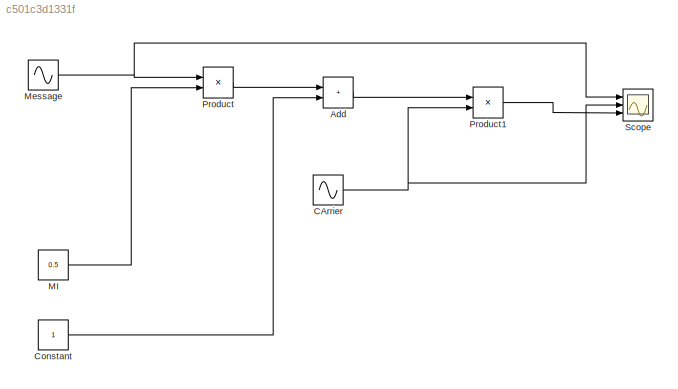
MODEL slx_c501c3d1331f
KIND model
CONFIG AbsTol = auto
CONFIG EnableMultiTasking = off
CONFIG FixedStep = auto
CONFIG MaxStep = auto
CONFIG MinStep = auto
CONFIG RelTol = 1e-3
CONFIG SampleTimeConstraint = Unconstrained
CONFIG SolverName = VariableStepAuto
CONFIG StartTime = 0.0
CONFIG StopTime = 10.0
BLOCK [Sum] Add
  IconShape = rectangular
  Ports = [2, 1]
BLOCK [Sin] CArrier
  Frequency = 2*pi*25
  Ports = [0, 1]
  SampleTime = 0
BLOCK [Constant] Constant
BLOCK [Constant] MI
  Value = 0.5
BLOCK [Sin] Message
  Frequency = 2*pi*5
  Ports = [0, 1]
  SampleTime = 0
BLOCK [Product] Product
  Ports = [2, 1]
BLOCK [Product] Product1
  Ports = [2, 1]
BLOCK [Scope] Scope
  Floating = off
  NumInputPorts = 3
  Ports = [3]
  ScopeSpecificationString = Simulink.scopes.TimeScopeBlockCfg('CurrentConfiguration', extmgr.ConfigurationSet(extmgr.Configuration('Core','General UI',true),extmgr.Configuration('Core','Source UI',true),extmgr.Configuration('Sources','WiredSimulink',true),extmgr.Configuration('Visuals','Time Domain',true),extmgr.Configuration('Tools','Plot Navigation',true),extmgr.Configuration('Tools','Measurements',true)),'Version','2020b'...<+1ch>
LINE Add:1 -> Product1:1
NET CArrier:1 -> Product1:2, Scope:2
LINE Constant:1 -> Add:2
LINE MI:1 -> Product:2
NET Message:1 -> Product:1, Scope:1
LINE Product1:1 -> Scope:3
LINE Product:1 -> Add:1
note: NET lines group one-source signal fan-out (src -> all destinations, sorted); 1:1 wires keep LINE
